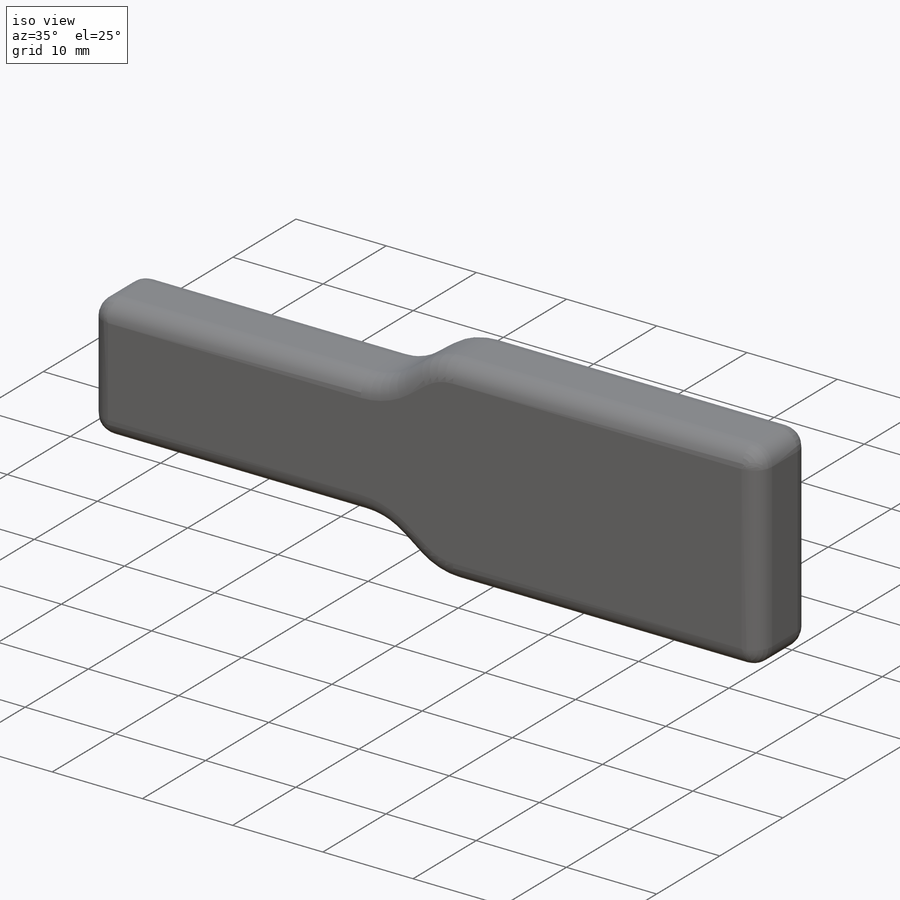
[diagram: iso view]
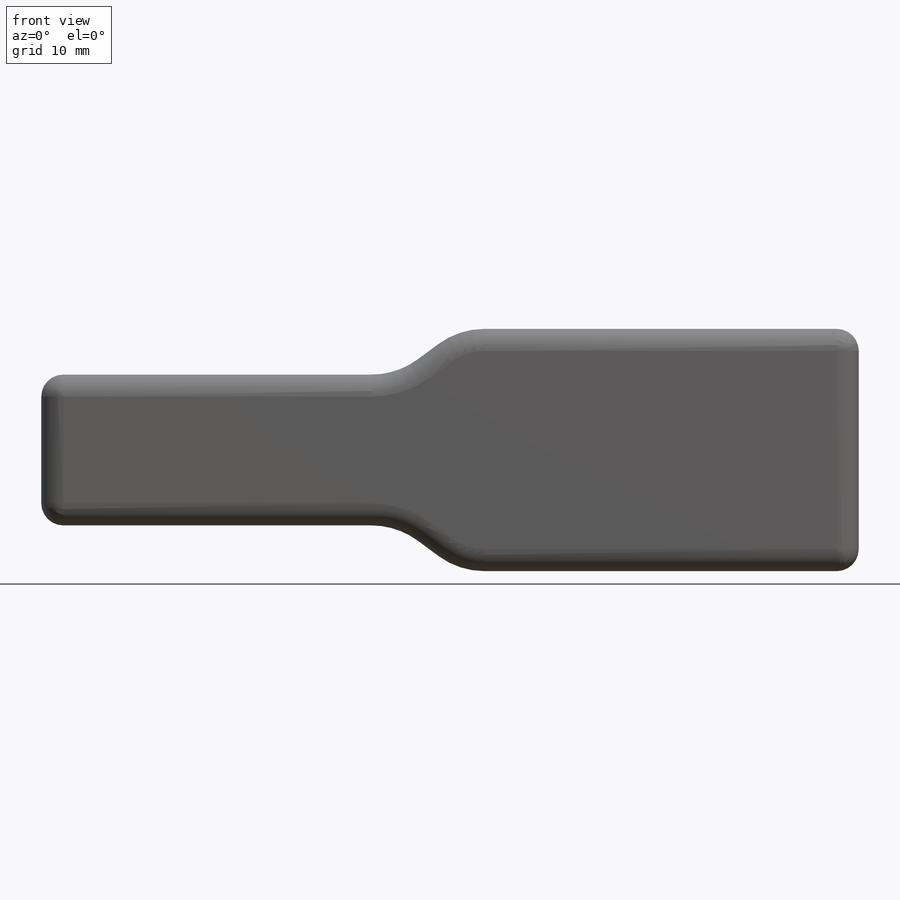
[diagram: front view]
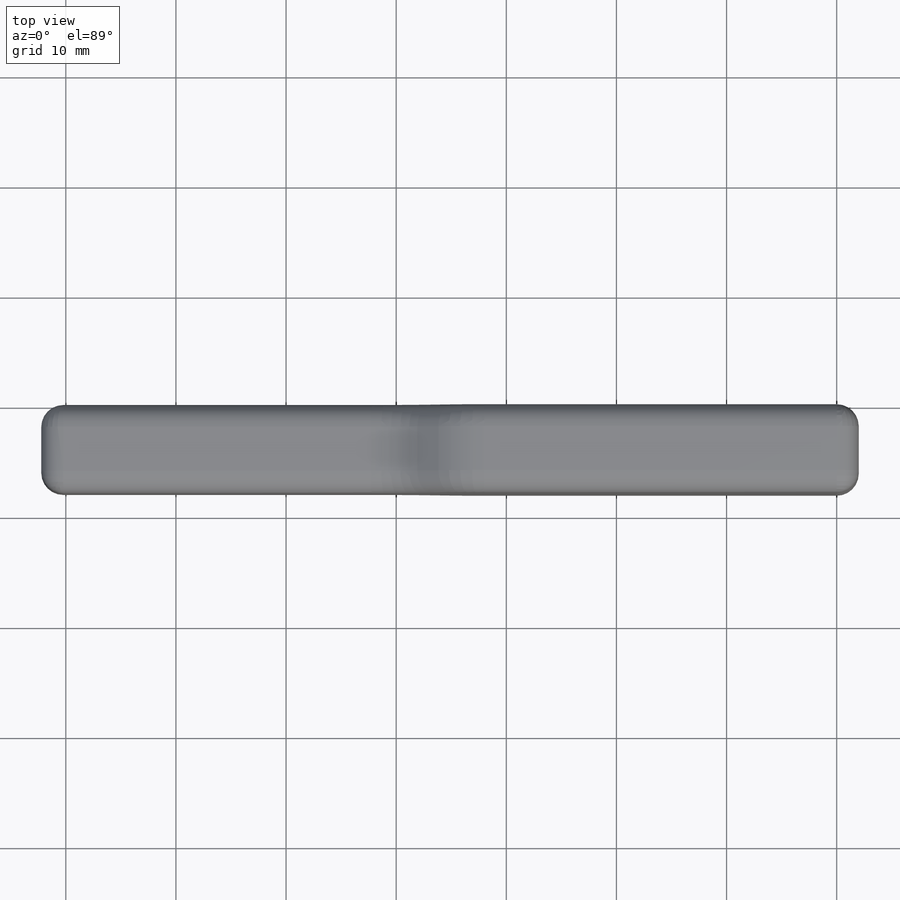
[diagram: top view]
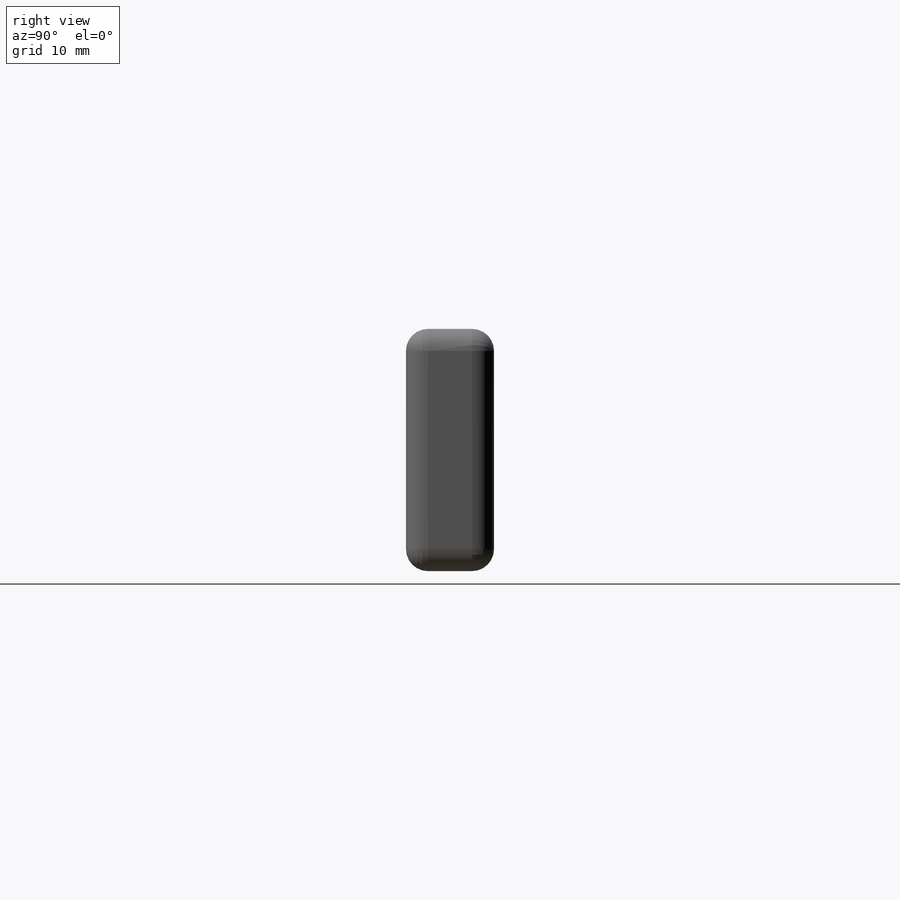
[diagram: right view]
SOLIDWORKS PART (.sldprt)
format: sldprt  version: not decoded by parser v0  size: 304,128 bytes
history: native  units: mm
features: sketch x3, extrude x2, material x1, shell x1, fillet x1 (+11 scaffold rows collapsed)
feature tree (19):
  scaffold x11  (default folders/planes/origin — collapsed)
  material  "Material <not specified>"
  sketch  "Sketch2"  dims[D1=7.0mm D2=2.0mm D3=2.0mm D10=2.0mm D4=28.0mm D5=32.0mm D6=~16.578624mm D7=9.7mm D9=0.0mm D8=1.0mm]
  extrude  "Boss-Extrude2"  Depth=8mm
  shell  "Shell1"  Thickness=1mm
  sketch  "Sketch5"
  extrude  "Boss-Extrude4"  Depth=1mm
  fillet  "Fillet1"  Radius=2mm
  sketch  "Sketch7"  dims[D1=9.0mm D2=5.0mm]
decode coverage: 6 of 7 modeling features carry decoded parameters
note: ~ marks probable driven/reference dimensions
note: suppression state not decoded; provenance and decode notes live in map.json
